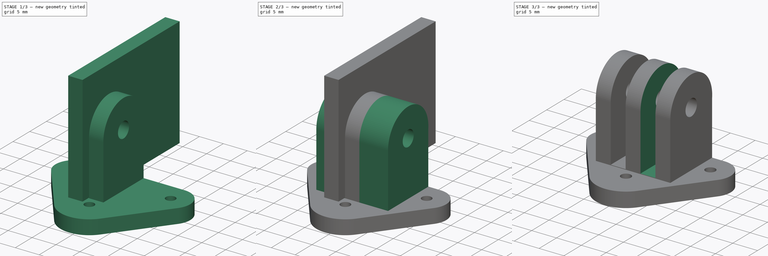
[diagram: build sequence overview — one tinted view per stage of 3, left to right]
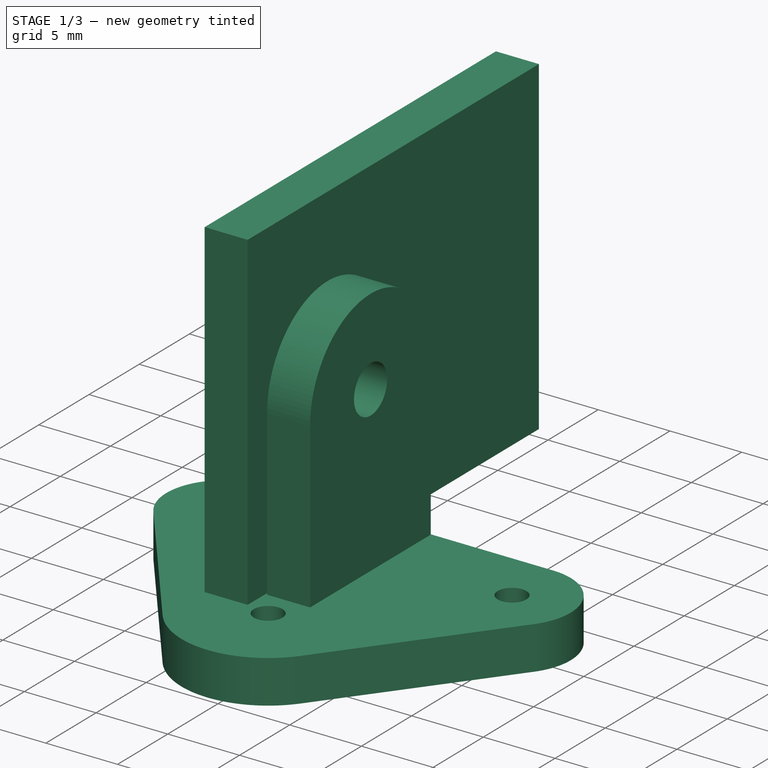
[diagram: stage 1 of 3 — iso view after this stage's code; geometry added in this stage tinted green]
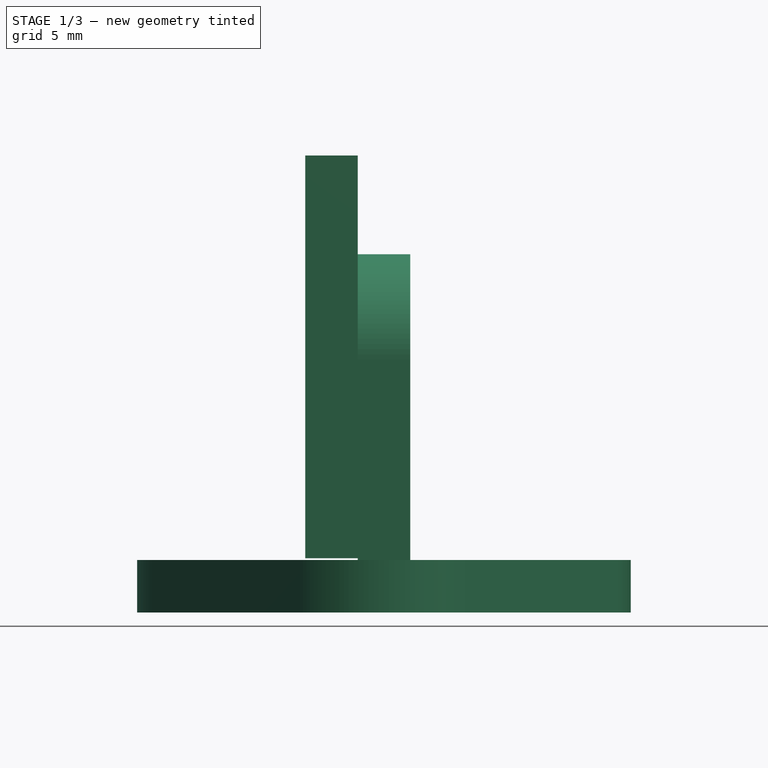
[diagram: stage 1 of 3 — front view after this stage's code; geometry added in this stage tinted green]
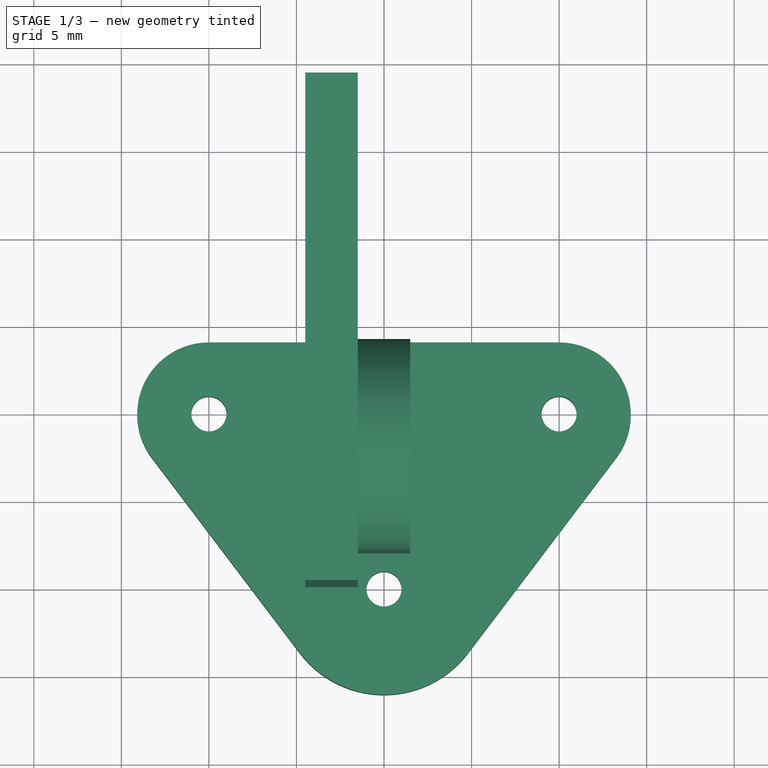
[diagram: stage 1 of 3 — top view after this stage's code; geometry added in this stage tinted green]
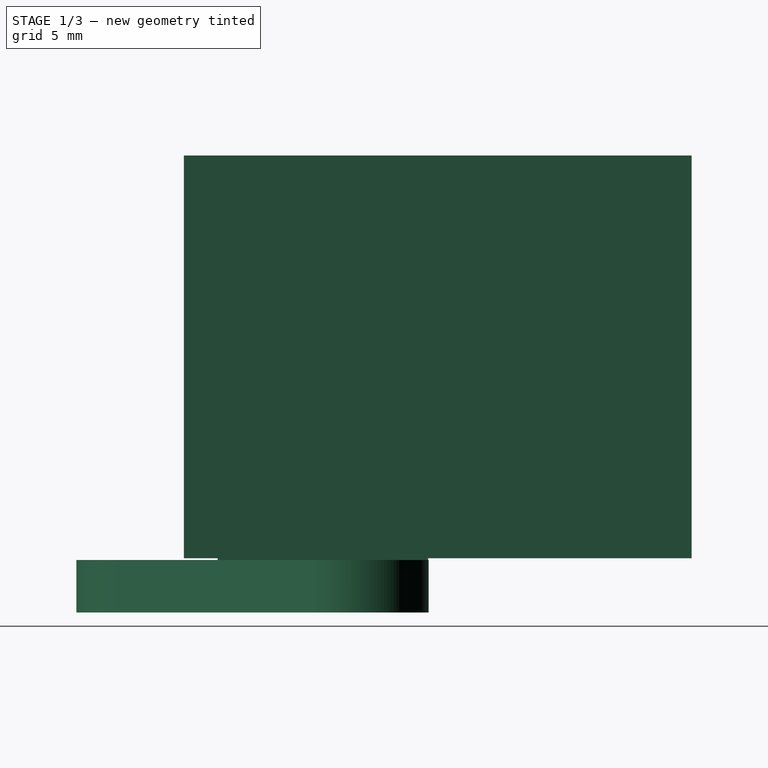
[diagram: stage 1 of 3 — right view after this stage's code; geometry added in this stage tinted green]
FCSTD DOCUMENT  (FreeCAD 0.19R24267 +99 (Git))
Label: 狗坐
License: All rights reserved
LicenseURL: http://en.wikipedia.org/wiki/All_rights_reserved
objects: PartDesign::Pad×4, Sketcher::SketchObject×2, Part::Box×2, Part::Cut×2, PartDesign::Body×1
note: 15 computed .brp shape members not serialized (recipe doc carries the construction recipe); baked Part::Feature solids carry a one-line shape summary decoded from their .brp

FEATURE [Sketcher::SketchObject] Sketch
  FullyConstrained = false
  MapMode = 5
  Support = -> [XY_Plane]
  sketch-geometry (11):
    g0: Circle CenterX=10 CenterY=5 CenterZ=0 NormalX=0 NormalY=0 NormalZ=1 AngleXU=0 Radius=1
    g1: Circle CenterX=0 CenterY=-5 CenterZ=0 NormalX=0 NormalY=0 NormalZ=1 AngleXU=0 Radius=1
    g2: Circle CenterX=-10 CenterY=5 CenterZ=0 NormalX=0 NormalY=0 NormalZ=1 AngleXU=0 Radius=1
    g3: LineSegment StartX=0 StartY=9.08245 StartZ=0 EndX=10 EndY=9.08245 EndZ=0
    g4: ArcOfCircle CenterX=10 CenterY=4.98627 CenterZ=0 NormalX=0 NormalY=0 NormalZ=1 AngleXU=0 Radius=4.09618 StartAngle=5.63479 EndAngle=7.85398
    g5: LineSegment StartX=13.2649 StartY=2.51257 StartZ=0 EndX=4.81099 EndY=-8.64515 EndZ=0
    g6: ArcOfCircle CenterX=0 CenterY=-5 CenterZ=0 NormalX=0 NormalY=0 NormalZ=1 AngleXU=0 Radius=6.03596 StartAngle=4.71239 EndAngle=5.63479
    g7: LineSegment StartX=-13.2649 StartY=2.51257 StartZ=0 EndX=-4.81099 EndY=-8.64515 EndZ=0
    g8: ArcOfCircle CenterX=0 CenterY=-5 CenterZ=0 NormalX=0 NormalY=0 NormalZ=1 AngleXU=0 Radius=6.03596 StartAngle=3.78999 EndAngle=4.71239
    g9: ArcOfCircle CenterX=-10 CenterY=4.98627 CenterZ=0 NormalX=0 NormalY=0 NormalZ=1 AngleXU=0 Radius=4.09618 StartAngle=1.5708 EndAngle=3.78999
    g10: LineSegment StartX=0 StartY=9.08245 StartZ=0 EndX=-10 EndY=9.08245 EndZ=0
  constraints (18):
    c: Diameter(g0) = 2
    c: Diameter(g1) = 2
    c: PointOnObject(g1,g-2)
    c: DistanceY(g-1,g0) = 5
    c: DistanceY(g-1,g1) = -5
    c: DistanceX(g-2,g0) = 10
    c: Diameter(g2) = 2
    c: PointOnObject(g3,g-2)
    c: Horizontal(g3)
    c: Tangent(g3,g4) = 1.5708
    c: Tangent(g4,g5) = 1.5708
    c: Tangent(g5,g6) = 1.5708
    c: PointOnObject(g6,g-2)
    c: Coincident(g6,g1)
    c: Horizontal(g10)
    c: Tangent(g10,g9) = -1.5708
    c: Tangent(g9,g7) = -1.5708
    c: Tangent(g7,g8) = -1.5708
FEATURE [PartDesign::Pad] Pad
  Direction = (1,1,1)
  Length = 3
  Length2 = 100
  Profile = -> Sketch
  Type = 0
FEATURE [Sketcher::SketchObject] Sketch001
  FullyConstrained = false
  MapMode = 5
  Placement = pos=(0,0,0) rot=(0.57735,0.57735,0.57735;2.0944rad)
  Support = -> [YZ_Plane]
  sketch-geometry (5):
    g0: LineSegment StartX=-2.97046 StartY=2.44077 StartZ=0 EndX=-2.97046 EndY=14.4408 EndZ=0
    g1: ArcOfCircle CenterX=3.05389 CenterY=14.4408 CenterZ=0 NormalX=0 NormalY=0 NormalZ=1 AngleXU=0 Radius=6.02435 StartAngle=6.18767 EndAngle=9.42478
    g2: LineSegment StartX=9.05078 StartY=13.8662 StartZ=0 EndX=9.05078 EndY=2.40789 EndZ=0
    g3: LineSegment StartX=9.05078 StartY=2.40789 StartZ=0 EndX=-2.97046 EndY=2.44077 EndZ=0
    g4: Circle CenterX=3.05389 CenterY=14.4408 CenterZ=0 NormalX=0 NormalY=0 NormalZ=1 AngleXU=0 Radius=1.65
  constraints (9):
    c: Vertical(g0)
    c: Tangent(g0,g1) = 1.5708
    c: Coincident(g1,g2)
    c: Vertical(g2)
    c: Coincident(g2,g3)
    c: Coincident(g3,g0)
    c: Distance(g0) = 12
    c: Coincident(g4,g1)
    c: Diameter(g4) = 3.3
FEATURE [PartDesign::Pad] Pad001
  BaseFeature = -> Pad
  Direction = (1,1,1)
  Length = 3
  Length2 = 100
  Midplane = true
  Profile = -> Sketch001
  Type = 0
FEATURE [Part::Box] Box001  label="立方体001"
  AttacherType = Attacher::AttachEngine3D
  Height = 23
  Length = 3
  Placement = pos=(-4.5,-4.9,3.1) rot=(0,0,1;0rad)
  Width = 29
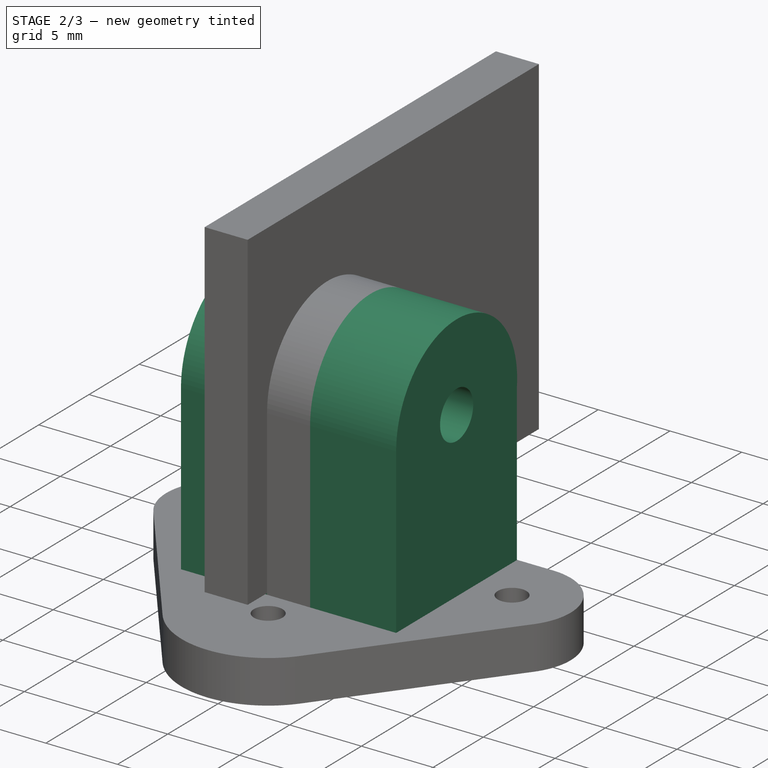
[diagram: stage 2 of 3 — iso view after this stage's code; geometry added in this stage tinted green]
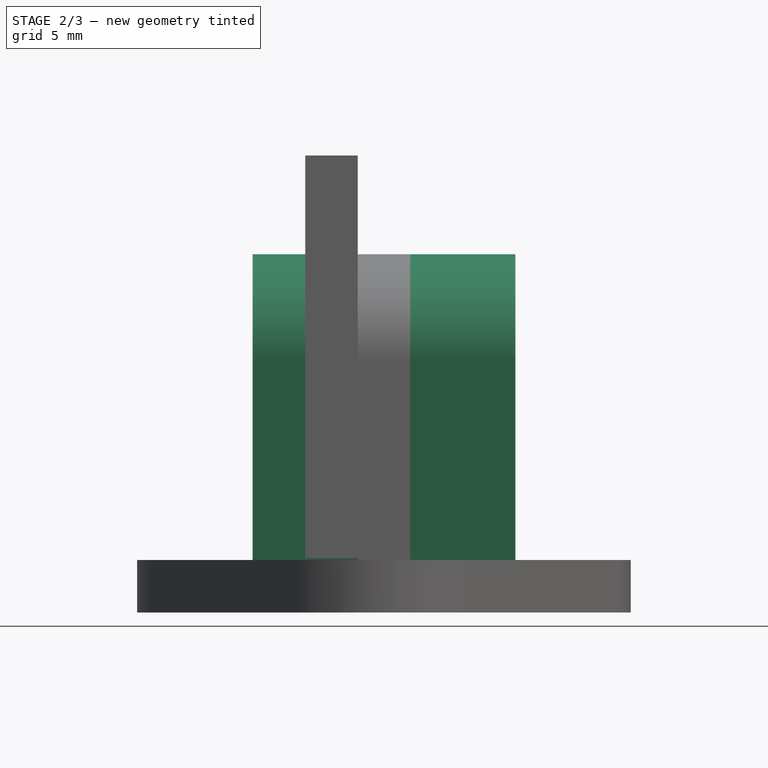
[diagram: stage 2 of 3 — front view after this stage's code; geometry added in this stage tinted green]
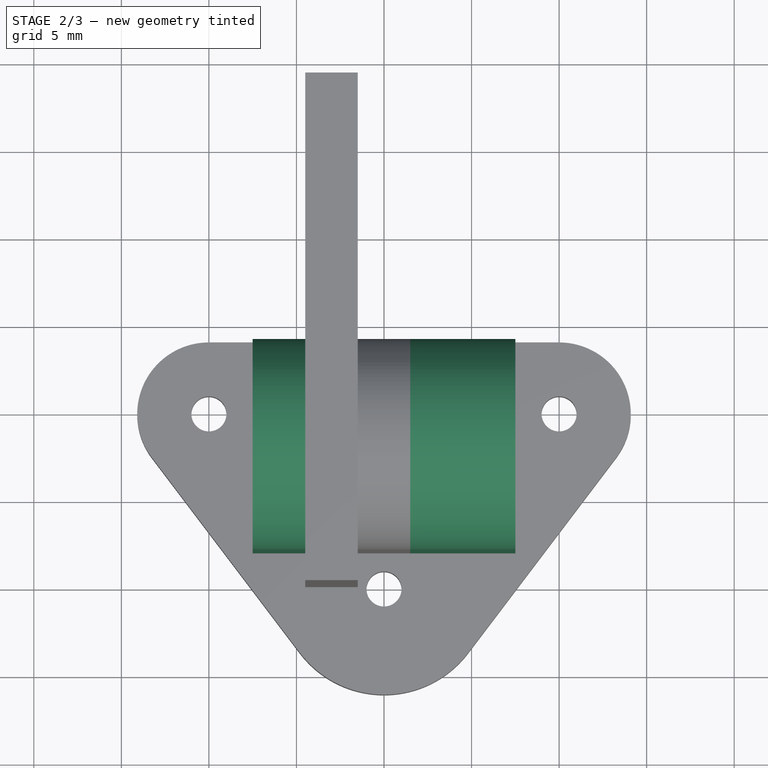
[diagram: stage 2 of 3 — top view after this stage's code; geometry added in this stage tinted green]
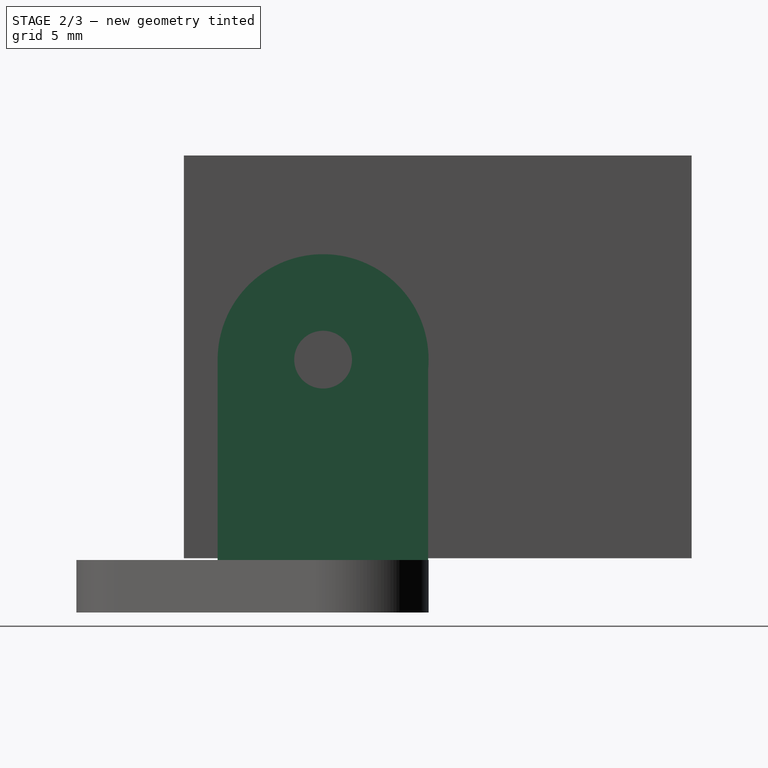
[diagram: stage 2 of 3 — right view after this stage's code; geometry added in this stage tinted green]
FEATURE [PartDesign::Pad] Pad002
  BaseFeature = -> Pad001
  Direction = (1,1,1)
  Length = 6
  Length2 = 100
  Profile = -> Pad001 [Face17]
  Type = 0
FEATURE [PartDesign::Pad] Pad003
  BaseFeature = -> Pad002
  Direction = (1,1,1)
  Length = 6
  Length2 = 100
  Profile = -> Pad002 [Face15]
  Type = 0
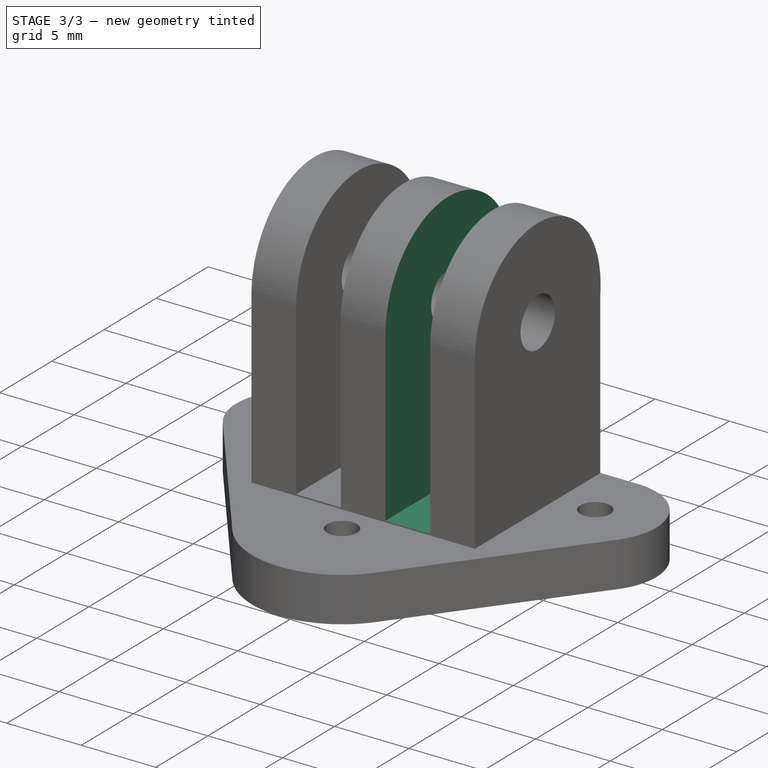
[diagram: stage 3 of 3 — iso view after this stage's code; geometry added in this stage tinted green]
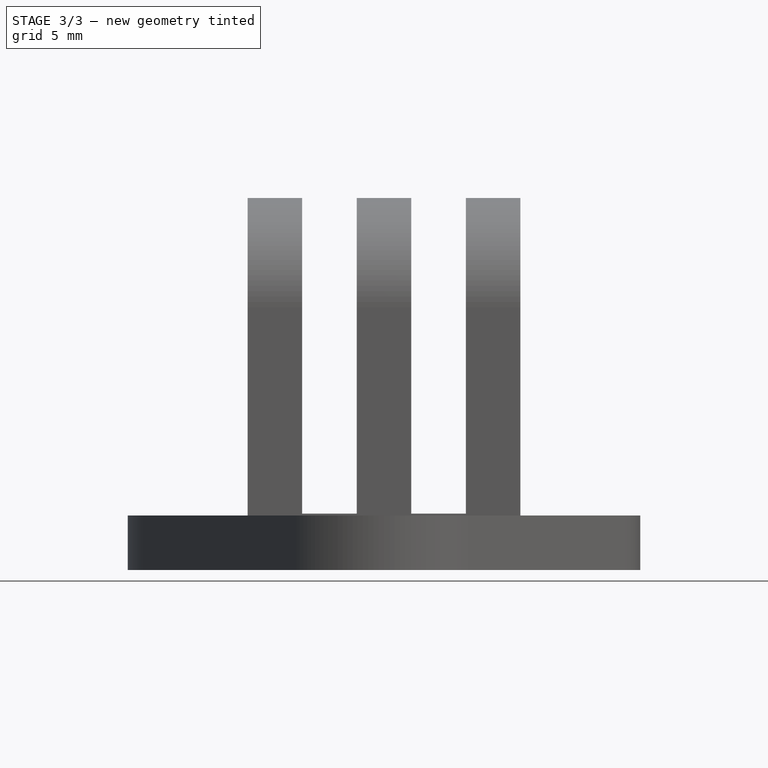
[diagram: stage 3 of 3 — front view after this stage's code; geometry added in this stage tinted green]
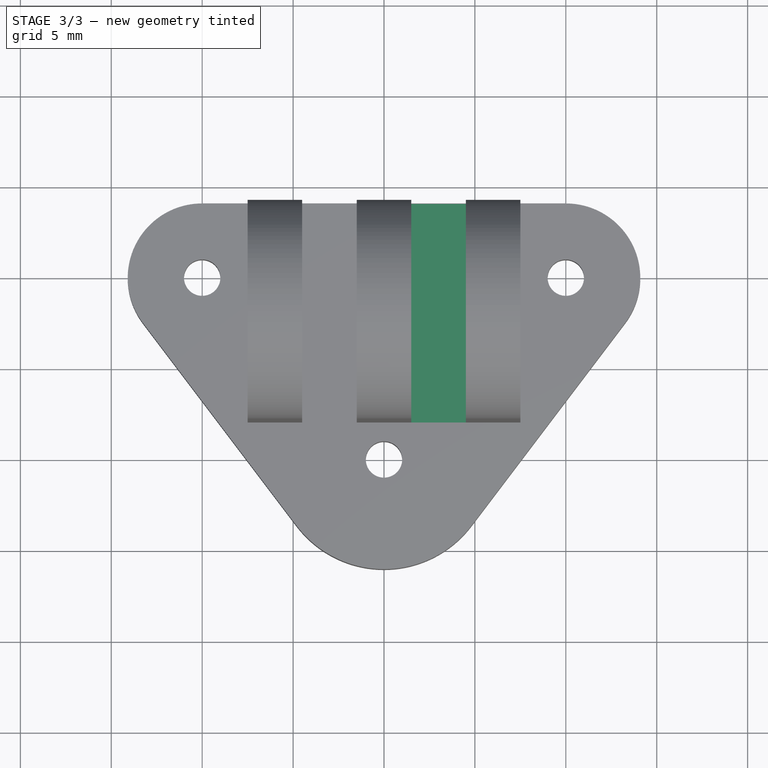
[diagram: stage 3 of 3 — top view after this stage's code; geometry added in this stage tinted green]
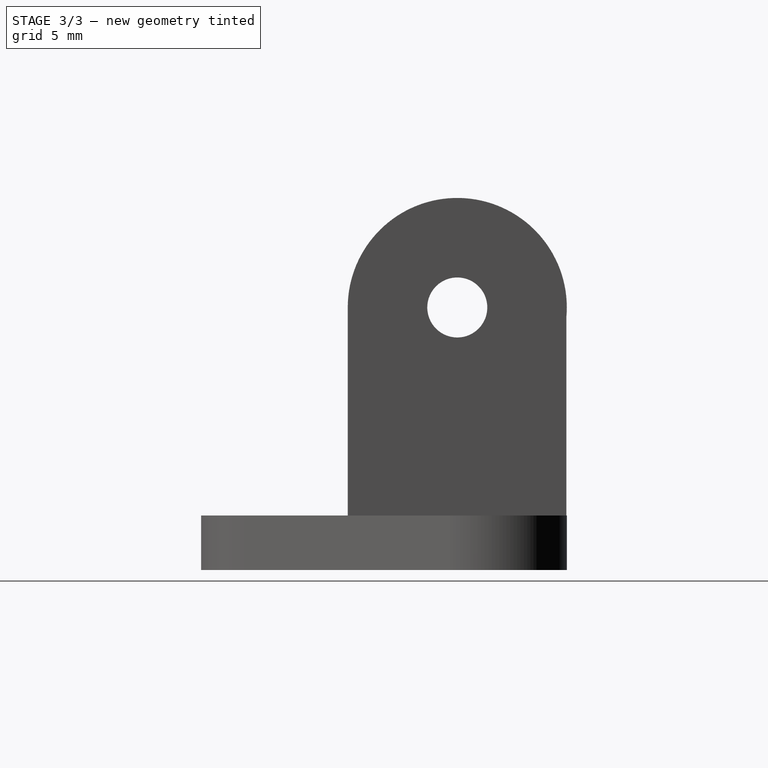
[diagram: stage 3 of 3 — right view after this stage's code; geometry added in this stage tinted green]
FEATURE [PartDesign::Body] Body
  Group = -> [Sketch,Pad,Sketch001,Pad001,Pad002,Pad003]
  Origin = -> Origin
  Tip = -> Pad003
FEATURE [Part::Box] Box  label="立方体"
  AttacherType = Attacher::AttachEngine3D
  Height = 23
  Length = 3
  Placement = pos=(1.5,-4.9,3.1) rot=(0,0,1;0rad)
  Width = 29
FEATURE [Part::Cut] Cut
  Base = -> Body
  Tool = -> Box001
FEATURE [Part::Cut] Cut001
  Base = -> Cut
  Tool = -> Box
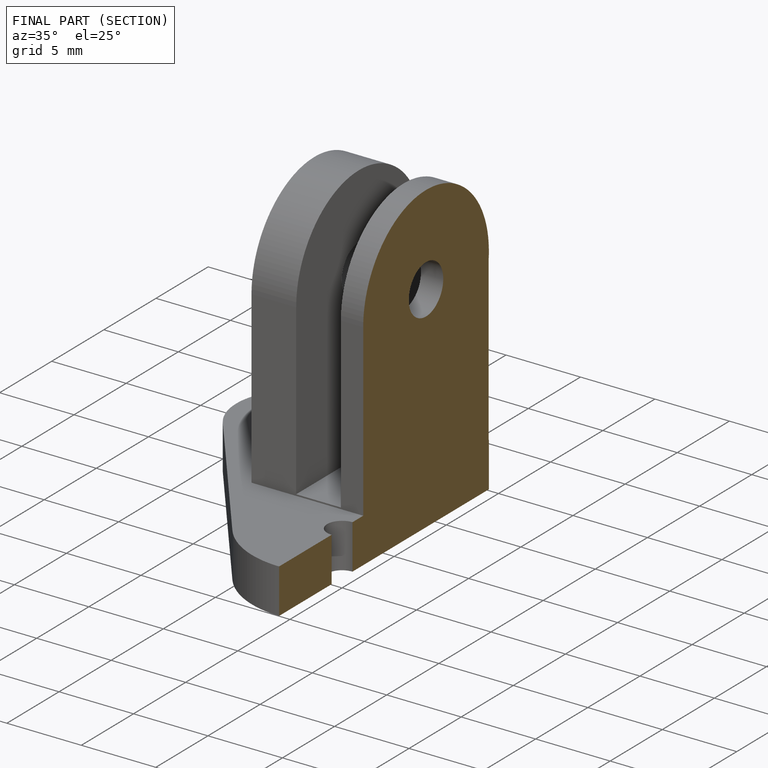
[diagram: finished part — half-section view (interior)]
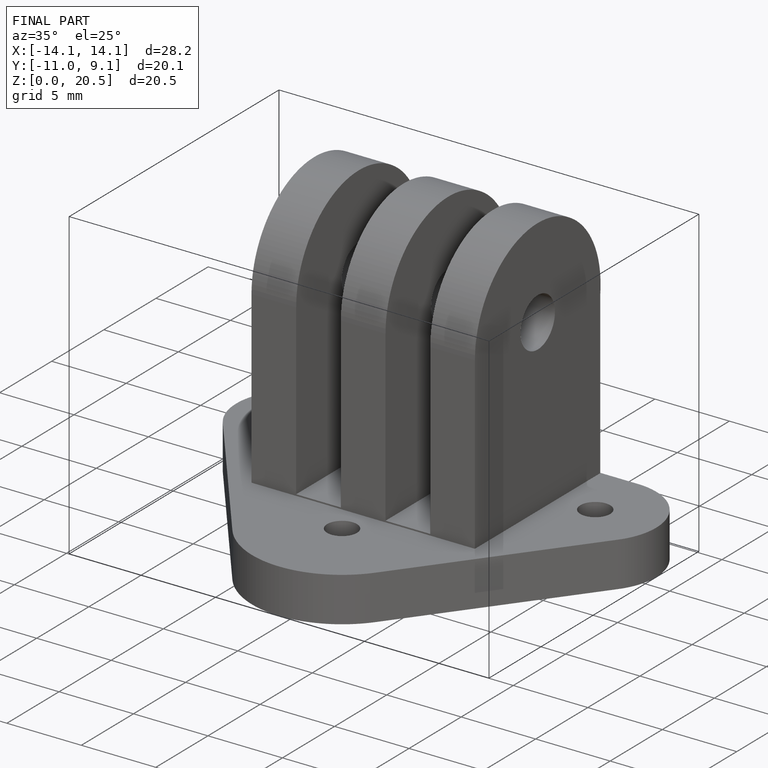
[diagram: finished part — iso view with bounding-box wireframe]
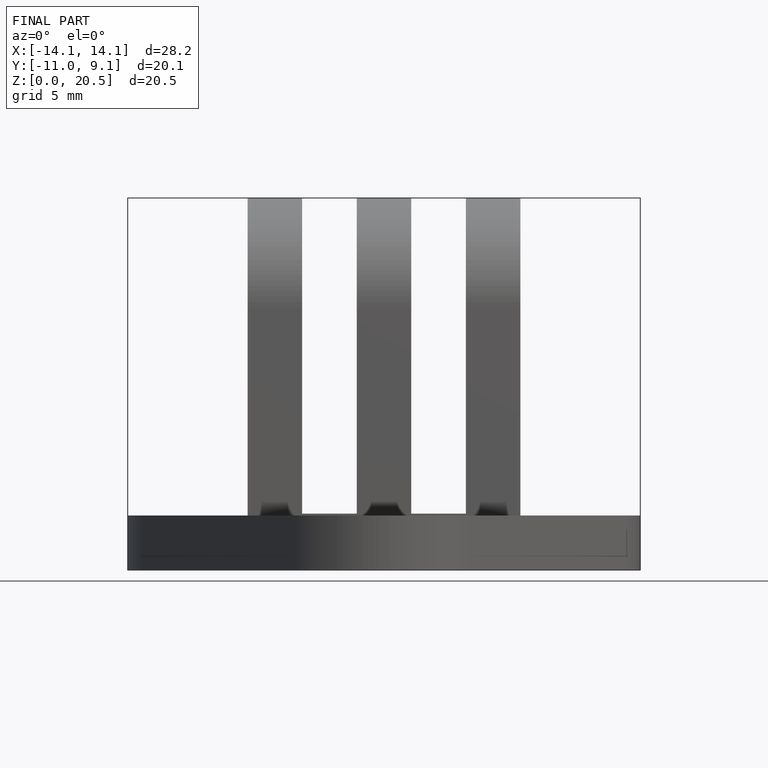
[diagram: finished part — front view with bounding-box wireframe]
